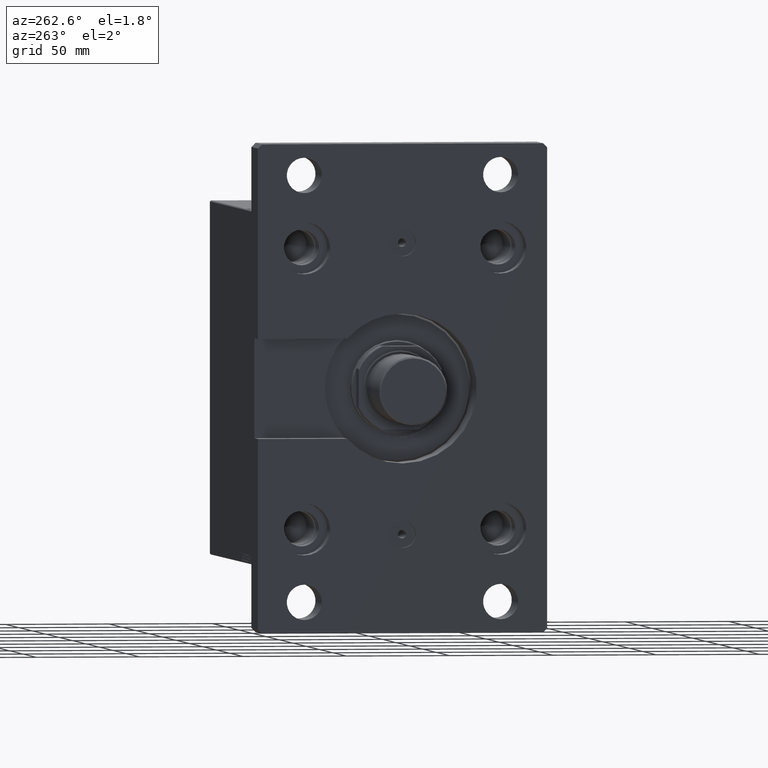
[diagram: clean part render]
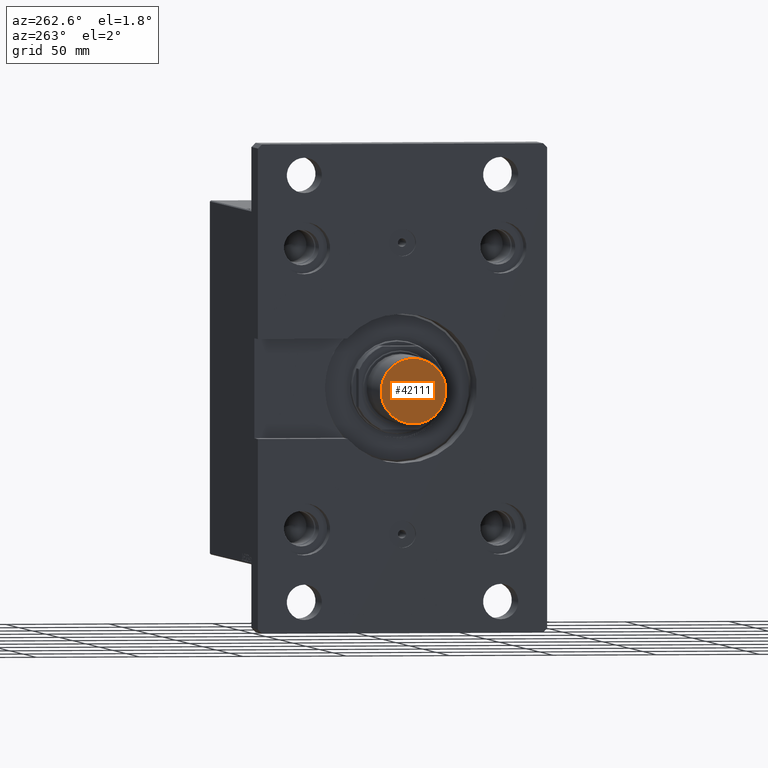
[diagram: same view with one face highlighted and labeled with its STEP entity id]
A machine part, auxiliary view. The second image highlights one B-rep face of the part: STEP entity #42111.
In plain terms, the highlighted planar face has unit normal (1, 0, 0).
Its self-contained STEP definition (entity closure, byte-faithful):
#421 = ORIENTED_EDGE ( 'NONE', *, *, #33036, .T. ) ;
#1039 = DIRECTION ( 'NONE',  ( 1.000000000000000000, 0.000000000000000000, 0.000000000000000000 ) ) ;
#2045 = CIRCLE ( 'NONE', #41588, 15.69999999999999929 ) ;
#5169 = DIRECTION ( 'NONE',  ( 1.000000000000000000, 0.000000000000000000, -0.000000000000000000 ) ) ;
#8813 = DIRECTION ( 'NONE',  ( 0.000000000000000000, 0.000000000000000000, 1.000000000000000000 ) ) ;
#9050 = CARTESIAN_POINT ( 'NONE',  ( 0.000000000000000000, 0.000000000000000000, 0.000000000000000000 ) ) ;
#10148 = CARTESIAN_POINT ( 'NONE',  ( 0.000000000000000000, 0.000000000000000000, 0.000000000000000000 ) ) ;
#12194 = EDGE_LOOP ( 'NONE', ( #42686, #421 ) ) ;
#13045 = CARTESIAN_POINT ( 'NONE',  ( -15.69999999999999929, 1.971681346627238883E-15, 0.000000000000000000 ) ) ;
#19705 = CARTESIAN_POINT ( 'NONE',  ( 0.000000000000000000, 0.000000000000000000, 0.000000000000000000 ) ) ;
#23097 = DIRECTION ( 'NONE',  ( -0.000000000000000000, -0.000000000000000000, -1.000000000000000000 ) ) ;
#25189 = AXIS2_PLACEMENT_3D ( 'NONE', #19705, #8813, #5169 ) ;
#27827 = VERTEX_POINT ( 'NONE', #13045 ) ;
#28132 = CIRCLE ( 'NONE', #45956, 15.69999999999999929 ) ;
#32506 = VERTEX_POINT ( 'NONE', #35528 ) ;
#33036 = EDGE_CURVE ( 'NONE', #27827, #32506, #28132, .T. ) ;
#35528 = CARTESIAN_POINT ( 'NONE',  ( 15.69999999999999929, 0.000000000000000000, 0.000000000000000000 ) ) ;
#36326 = DIRECTION ( 'NONE',  ( 1.000000000000000000, 0.000000000000000000, 0.000000000000000000 ) ) ;
#36801 = DIRECTION ( 'NONE',  ( -0.000000000000000000, -0.000000000000000000, -1.000000000000000000 ) ) ;
#41075 = PLANE ( 'NONE',  #25189 ) ;
#41588 = AXIS2_PLACEMENT_3D ( 'NONE', #9050, #23097, #1039 ) ;
#42111 = ADVANCED_FACE ( 'NONE', ( #44729 ), #41075, .F. ) ;
#42686 = ORIENTED_EDGE ( 'NONE', *, *, #45900, .T. ) ;
#44729 = FACE_OUTER_BOUND ( 'NONE', #12194, .T. ) ;
#45900 = EDGE_CURVE ( 'NONE', #32506, #27827, #2045, .T. ) ;
#45956 = AXIS2_PLACEMENT_3D ( 'NONE', #10148, #36801, #36326 ) ;